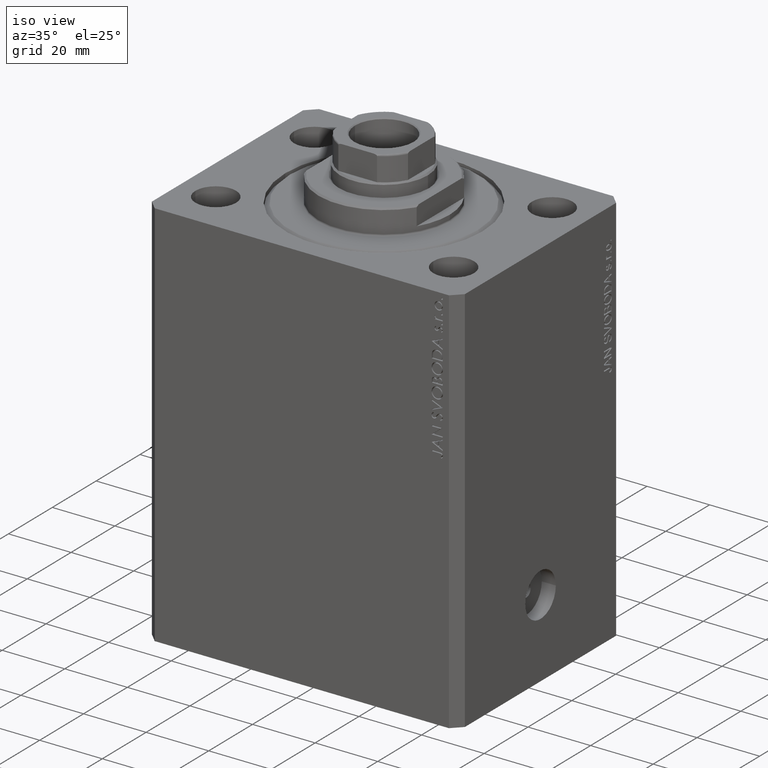
[diagram: clean part render]
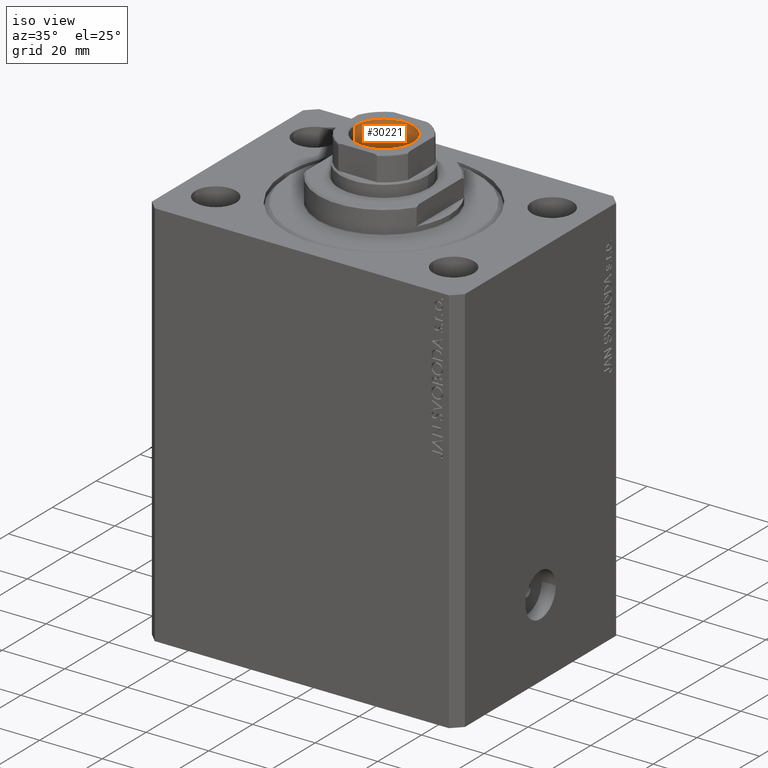
[diagram: same view with one face highlighted and labeled with its STEP entity id]
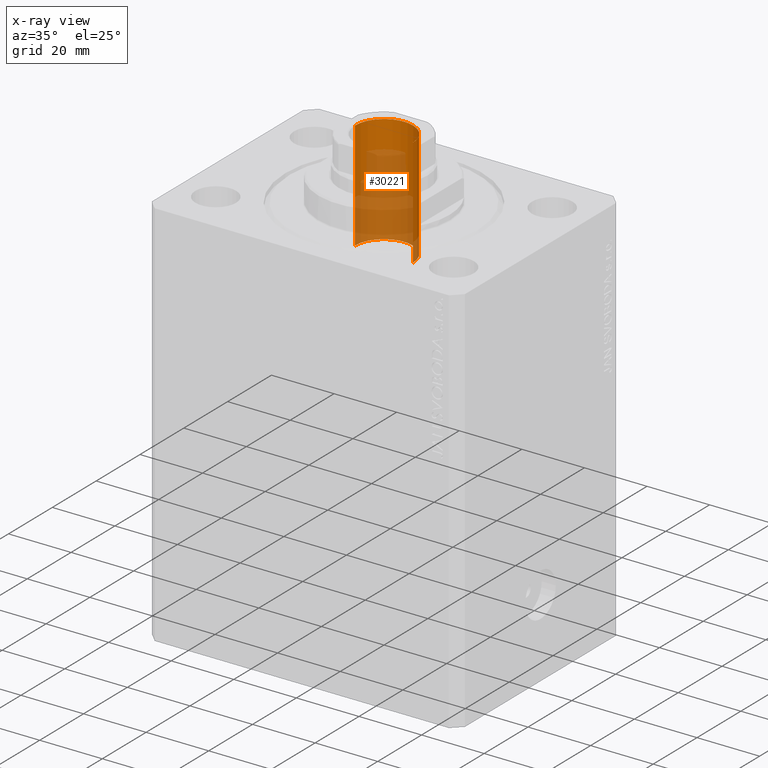
[diagram: x-ray of the same camera — body ghosted, the highlighted face saturated]
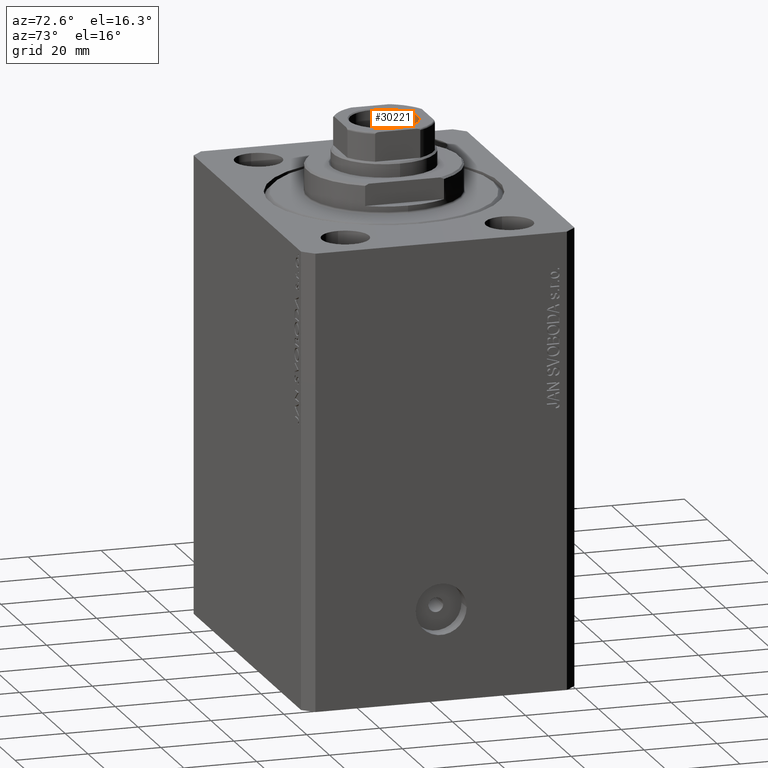
[diagram: same view with one face highlighted and labeled with its STEP entity id]
A machine part, iso view. The second image highlights one B-rep face of the part: STEP entity #30221.
The next image is the same camera in x-ray: the body ghosted, the highlighted face saturated — about 60% of this face is hidden behind the body in this view.
A second angle (auxiliary view) of the same face is appended — the face is thin or edge-on in the first view.
In plain terms, the highlighted cylindrical surface (edge-blend (fillet) strip) has radius 9.25 mm, axis along (0, 0, 1).
Its self-contained STEP definition (entity closure, byte-faithful):
#3524 = CARTESIAN_POINT ( 'NONE',  ( 0.000000000000000000, 0.000000000000000000, 98.09999999999999432 ) ) ;
#5511 = FACE_OUTER_BOUND ( 'NONE', #40987, .T. ) ;
#5933 = DIRECTION ( 'NONE',  ( 1.000000000000000000, 0.000000000000000000, 0.000000000000000000 ) ) ;
#6599 = LINE ( 'NONE', #44256, #27773 ) ;
#6800 = CARTESIAN_POINT ( 'NONE',  ( -9.249999999999996447, 1.132798289211301304E-15, 133.0999999999999943 ) ) ;
#8980 = EDGE_CURVE ( 'NONE', #31658, #25631, #37915, .T. ) ;
#9705 = VERTEX_POINT ( 'NONE', #26674 ) ;
#9731 = EDGE_CURVE ( 'NONE', #9705, #25631, #42046, .T. ) ;
#12696 = CARTESIAN_POINT ( 'NONE',  ( 0.000000000000000000, 0.000000000000000000, 132.8000000000000114 ) ) ;
#13439 = ORIENTED_EDGE ( 'NONE', *, *, #23002, .F. ) ;
#14022 = DIRECTION ( 'NONE',  ( -0.000000000000000000, -0.000000000000000000, 1.000000000000000000 ) ) ;
#15667 = DIRECTION ( 'NONE',  ( -0.000000000000000000, -0.000000000000000000, 1.000000000000000000 ) ) ;
#17797 = ORIENTED_EDGE ( 'NONE', *, *, #9731, .T. ) ;
#19265 = DIRECTION ( 'NONE',  ( 0.000000000000000000, 0.000000000000000000, 1.000000000000000000 ) ) ;
#20126 = VERTEX_POINT ( 'NONE', #38940 ) ;
#20476 = VECTOR ( 'NONE', #23257, 1000.000000000000000 ) ;
#22202 = DIRECTION ( 'NONE',  ( 1.000000000000000000, 0.000000000000000000, 0.000000000000000000 ) ) ;
#23002 = EDGE_CURVE ( 'NONE', #20126, #31658, #37342, .T. ) ;
#23257 = DIRECTION ( 'NONE',  ( -0.000000000000000000, -0.000000000000000000, 1.000000000000000000 ) ) ;
#25631 = VERTEX_POINT ( 'NONE', #28578 ) ;
#26674 = CARTESIAN_POINT ( 'NONE',  ( 9.249999999999996447, 0.000000000000000000, 132.8000000000000114 ) ) ;
#27773 = VECTOR ( 'NONE', #14022, 1000.000000000000000 ) ;
#28269 = CARTESIAN_POINT ( 'NONE',  ( -9.249999999999994671, 1.132798289211300909E-15, 98.09999999999999432 ) ) ;
#28578 = CARTESIAN_POINT ( 'NONE',  ( -9.249999999999996447, 1.132798289211301304E-15, 132.8000000000000114 ) ) ;
#29935 = AXIS2_PLACEMENT_3D ( 'NONE', #32333, #15667, #22202 ) ;
#30221 = ADVANCED_FACE ( 'NONE', ( #5511 ), #39779, .F. ) ;
#31039 = EDGE_CURVE ( 'NONE', #20126, #9705, #6599, .T. ) ;
#31658 = VERTEX_POINT ( 'NONE', #28269 ) ;
#32333 = CARTESIAN_POINT ( 'NONE',  ( 0.000000000000000000, 0.000000000000000000, 133.0999999999999943 ) ) ;
#35575 = AXIS2_PLACEMENT_3D ( 'NONE', #12696, #19265, #5933 ) ;
#36909 = DIRECTION ( 'NONE',  ( 1.000000000000000000, 0.000000000000000000, 0.000000000000000000 ) ) ;
#37138 = DIRECTION ( 'NONE',  ( -0.000000000000000000, -0.000000000000000000, 1.000000000000000000 ) ) ;
#37342 = CIRCLE ( 'NONE', #44543, 9.249999999999994671 ) ;
#37915 = LINE ( 'NONE', #6800, #20476 ) ;
#38940 = CARTESIAN_POINT ( 'NONE',  ( 9.249999999999994671, 0.000000000000000000, 98.09999999999999432 ) ) ;
#39779 = CYLINDRICAL_SURFACE ( 'NONE', #29935, 9.249999999999996447 ) ;
#40073 = ORIENTED_EDGE ( 'NONE', *, *, #8980, .F. ) ;
#40987 = EDGE_LOOP ( 'NONE', ( #40073, #13439, #41678, #17797 ) ) ;
#41678 = ORIENTED_EDGE ( 'NONE', *, *, #31039, .T. ) ;
#42046 = CIRCLE ( 'NONE', #35575, 9.249999999999996447 ) ;
#44256 = CARTESIAN_POINT ( 'NONE',  ( 9.249999999999996447, 0.000000000000000000, 133.0999999999999943 ) ) ;
#44543 = AXIS2_PLACEMENT_3D ( 'NONE', #3524, #37138, #36909 ) ;